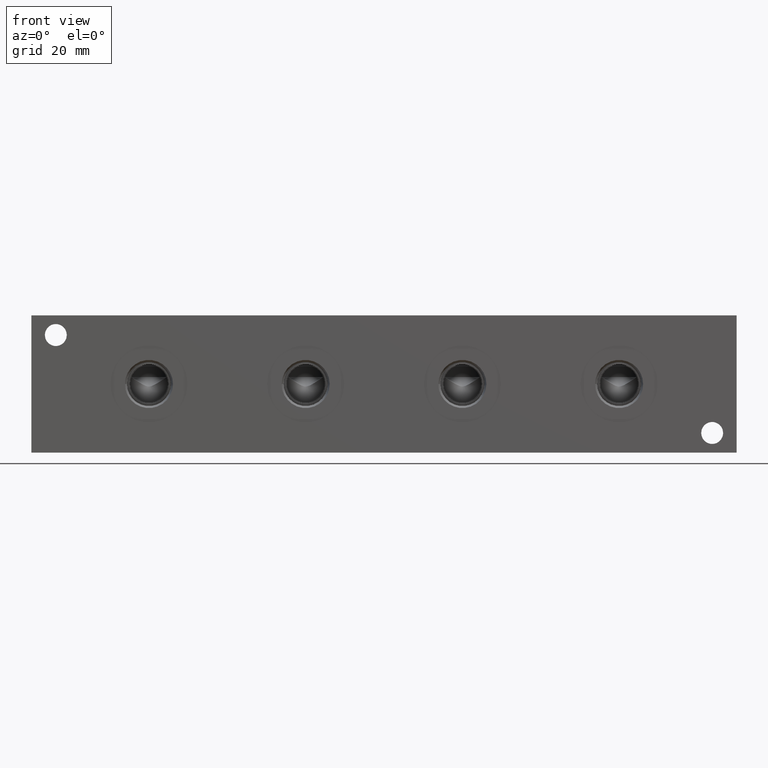
[diagram: clean part render]
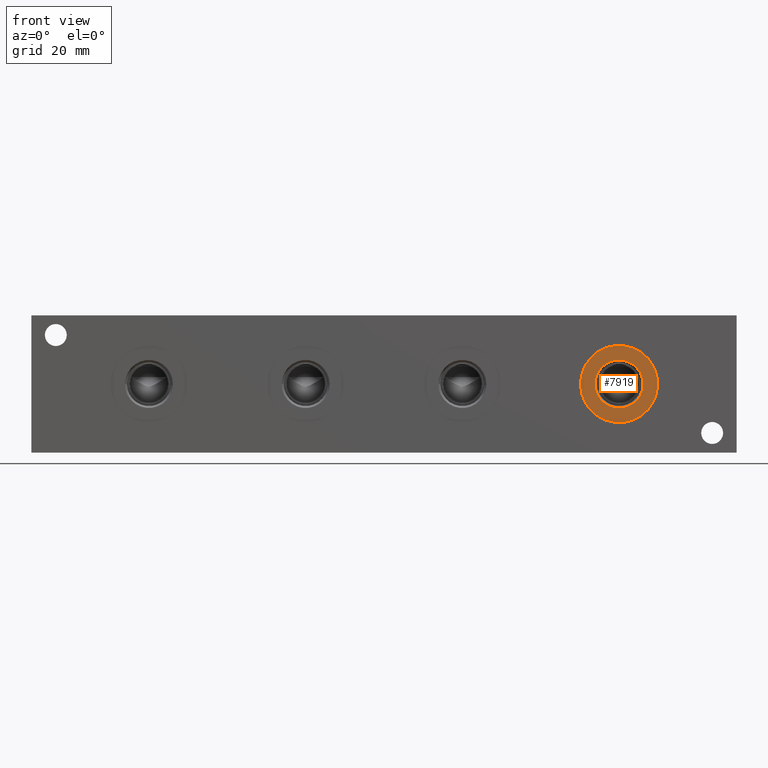
[diagram: same view with one face highlighted and labeled with its STEP entity id]
A machine part, front view. The second image highlights one B-rep face of the part: STEP entity #7919.
In plain terms, the highlighted planar face has unit normal (0, 1, 0).
Its self-contained STEP definition (entity closure, byte-faithful):
#147=CIRCLE('',#8268,12.5095);
#148=CIRCLE('',#8269,12.5095);
#149=CIRCLE('',#8271,7.79779999999999);
#150=CIRCLE('',#8272,7.79779999999999);
#306=FACE_BOUND('',#1473,.T.);
#1019=FACE_OUTER_BOUND('',#1472,.T.);
#1472=EDGE_LOOP('',(#6617,#6618));
#1473=EDGE_LOOP('',(#6619,#6620));
#3581=VERTEX_POINT('',#13477);
#3582=VERTEX_POINT('',#13479);
#3583=VERTEX_POINT('',#13483);
#3584=VERTEX_POINT('',#13484);
#4619=EDGE_CURVE('',#3581,#3582,#147,.T.);
#4620=EDGE_CURVE('',#3582,#3581,#148,.T.);
#4621=EDGE_CURVE('',#3583,#3584,#149,.T.);
#4622=EDGE_CURVE('',#3584,#3583,#150,.T.);
#6617=ORIENTED_EDGE('',*,*,#4620,.F.);
#6618=ORIENTED_EDGE('',*,*,#4619,.F.);
#6619=ORIENTED_EDGE('',*,*,#4621,.T.);
#6620=ORIENTED_EDGE('',*,*,#4622,.T.);
#7269=PLANE('',#8270);
#7919=ADVANCED_FACE('',(#1019,#306),#7269,.F.);
#8268=AXIS2_PLACEMENT_3D('',#13480,#9628,#9629);
#8269=AXIS2_PLACEMENT_3D('',#13481,#9630,#9631);
#8270=AXIS2_PLACEMENT_3D('',#13482,#9632,#9633);
#8271=AXIS2_PLACEMENT_3D('',#13485,#9634,#9635);
#8272=AXIS2_PLACEMENT_3D('',#13486,#9636,#9637);
#9628=DIRECTION('center_axis',(0.,1.,0.));
#9629=DIRECTION('ref_axis',(1.,0.,0.));
#9630=DIRECTION('center_axis',(0.,1.,0.));
#9631=DIRECTION('ref_axis',(1.,0.,0.));
#9632=DIRECTION('center_axis',(0.,1.,0.));
#9633=DIRECTION('ref_axis',(0.,0.,1.));
#9634=DIRECTION('center_axis',(0.,1.,0.));
#9635=DIRECTION('ref_axis',(1.,0.,0.));
#9636=DIRECTION('center_axis',(0.,1.,0.));
#9637=DIRECTION('ref_axis',(1.,0.,0.));
#13477=CARTESIAN_POINT('',(177.9905,0.7874,22.225));
#13479=CARTESIAN_POINT('',(203.0095,0.7874,22.225));
#13480=CARTESIAN_POINT('Origin',(190.5,0.7874,22.225));
#13481=CARTESIAN_POINT('Origin',(190.5,0.7874,22.225));
#13482=CARTESIAN_POINT('Origin',(198.2978,0.7874,22.225));
#13483=CARTESIAN_POINT('',(198.2978,0.7874,22.225));
#13484=CARTESIAN_POINT('',(182.7022,0.7874,22.225));
#13485=CARTESIAN_POINT('Origin',(190.5,0.7874,22.225));
#13486=CARTESIAN_POINT('Origin',(190.5,0.7874,22.225));